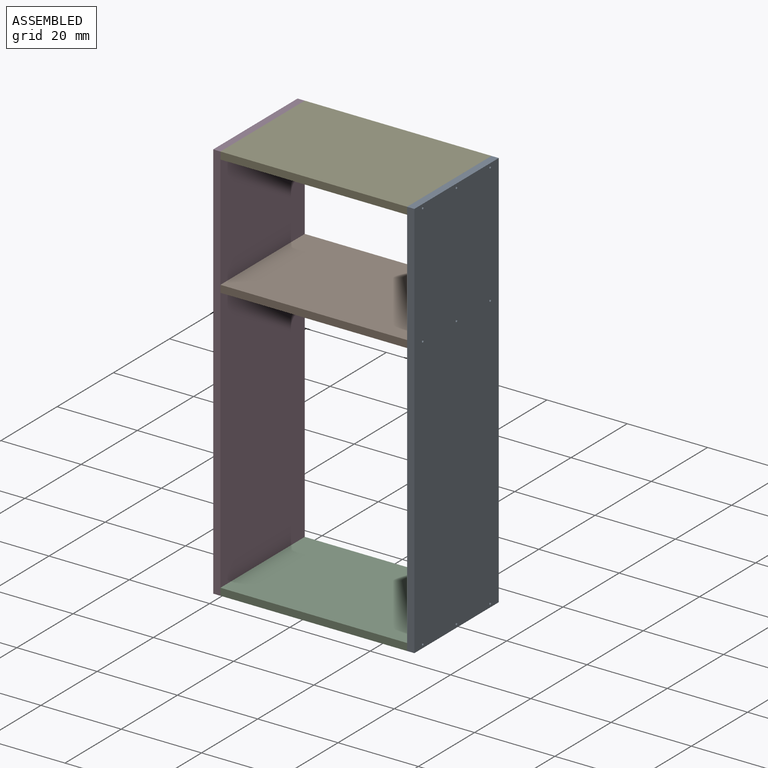
[diagram: assembled view]
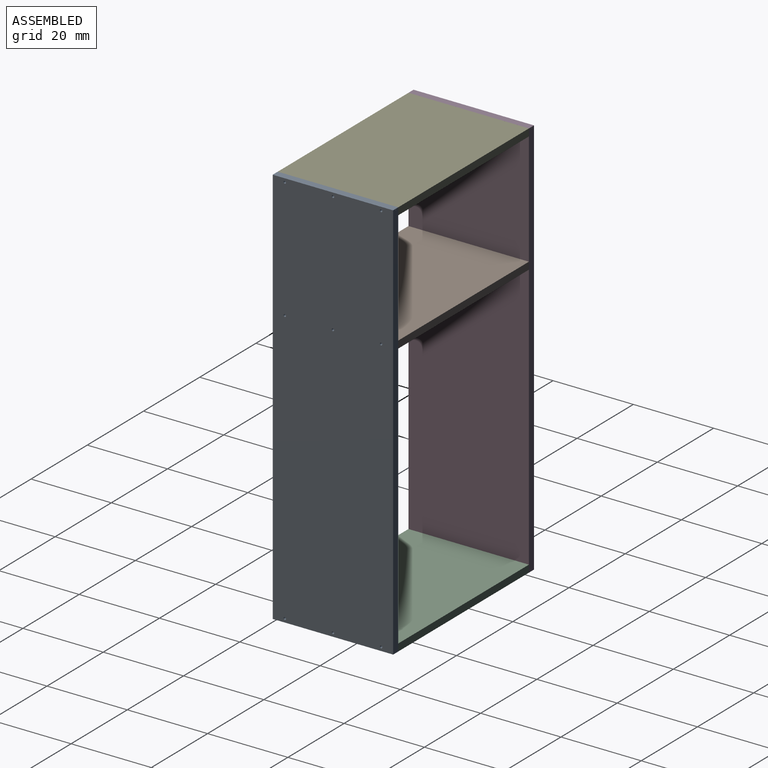
[diagram: assembled view, second angle]
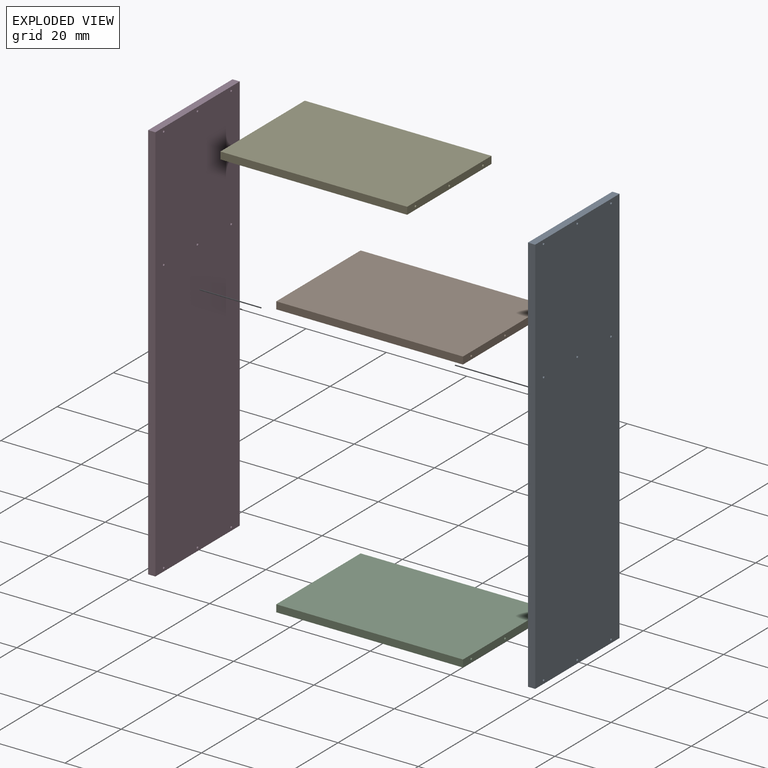
[diagram: exploded view]
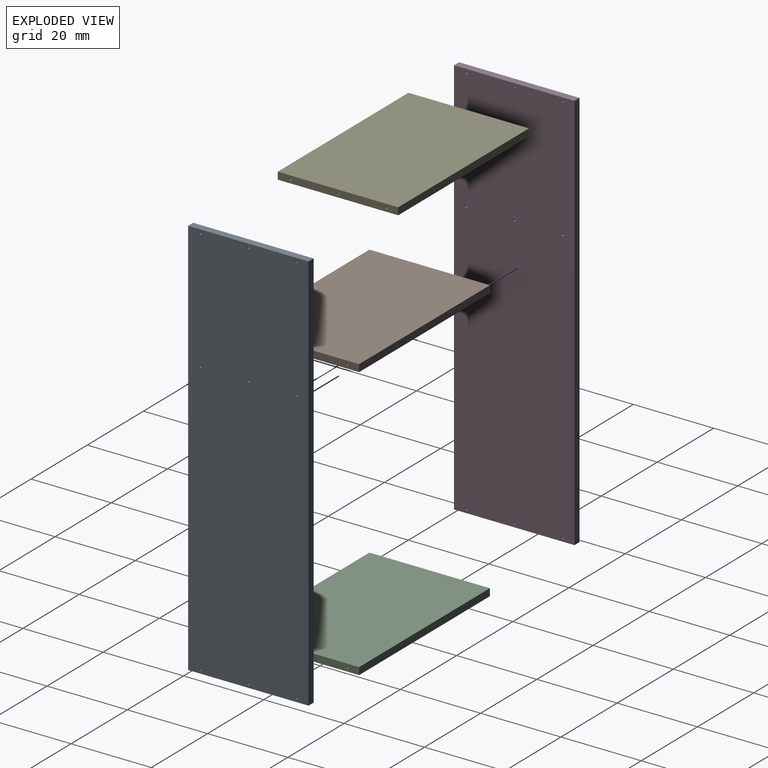
[diagram: exploded view, second angle]
ASSEMBLY  parts=5 mates=4
PART A: 17 faces, bbox 1.8x30.1x100 mm
  f0: plane 30x1.8mm, normal (0,0,1), area 54mm2, adj f1,f3,f4,f5
  f1: plane 100x30mm, normal (-1,0,0), area 2997.5mm2, adj f0,f2,f4,f5,f6,f7,f8,f9
  f2: plane 30x1.8mm, normal (0,0,-1), area 54mm2, adj f1,f3,f4,f5
  f3: plane 100x30mm, normal (1,0,0), area 2997.5mm2, adj f0,f2,f4,f5,f6,f7,f8,f9
  f4: plane 100x1.8mm, normal (0,-1,0), area 180mm2, adj f0,f1,f2,f3
  f5: plane 100x1.8mm, normal (0,1,0), area 180mm2, adj f0,f1,f2,f3,f15
  f6: cylinder r=0.3mm len=1.8mm, axis (1,0,0), area 3.4mm2, adj f1,f3
  f7: cylinder r=0.3mm len=1.8mm, axis (1,0,0), area 3.4mm2, adj f1,f3
  f8: cylinder r=0.3mm len=1.8mm, axis (1,0,0), area 3.4mm2, adj f1,f3
  f9: cylinder r=0.3mm len=1.8mm, axis (1,0,0), area 3.4mm2, adj f1,f3
  f10: cylinder r=0.3mm len=1.8mm, axis (1,0,0), area 3.4mm2, adj f1,f3
  f11: cylinder r=0.3mm len=1.8mm, axis (1,0,0), area 3.4mm2, adj f1,f3
  f12: cylinder r=0.3mm len=1.8mm, axis (1,0,0), area 3.4mm2, adj f1,f3
  f13: cylinder r=0.3mm len=1.8mm, axis (1,0,0), area 3.4mm2, adj f1,f3
  f14: cylinder r=0.3mm len=1.8mm, axis (1,0,0), area 3.4mm2, adj f1,f3
  f15: cylinder r=0.05mm len=0.1mm, axis (0,-1,0), area 0mm2, adj f5,f16
  f16: plane 0.1x0.1mm, normal (0,1,0), area 0mm2, adj f15
PART B: 18 faces, bbox 46.5x30x1.8 mm
  f0: plane 46.5x1.8mm, normal (0,1,0), area 83.7mm2, adj f1,f3,f4,f5
  f1: plane 30x1.8mm, normal (-1,0,0), area 53.2mm2, adj f0,f2,f4,f5,f12,f14,f16
  f2: plane 46.5x1.8mm, normal (0,-1,0), area 83.7mm2, adj f1,f3,f4,f5
  f3: plane 30x1.8mm, normal (1,0,0), area 53.2mm2, adj f0,f2,f4,f5,f6,f8,f10
  f4: plane 46.5x30mm, normal (0,0,1), area 1395mm2, adj f0,f1,f2,f3
  f5: plane 46.5x30mm, normal (0,0,-1), area 1395mm2, adj f0,f1,f2,f3
  f6: cylinder r=0.3mm len=4.5mm, axis (1,0,0), area 8.5mm2, adj f3,f7
  f7: plane 0.6x0.6mm, normal (1,0,0), area 0.3mm2, adj f6
  f8: cylinder r=0.3mm len=4.5mm, axis (1,0,0), area 8.5mm2, adj f3,f9
  f9: plane 0.6x0.6mm, normal (1,0,0), area 0.3mm2, adj f8
  f10: cylinder r=0.3mm len=4.5mm, axis (1,0,0), area 8.5mm2, adj f3,f11
  f11: plane 0.6x0.6mm, normal (1,0,0), area 0.3mm2, adj f10
  f12: cylinder r=0.3mm len=4.5mm, axis (-1,0,0), area 8.5mm2, adj f1,f13
  f13: plane 0.6x0.6mm, normal (-1,0,0), area 0.3mm2, adj f12
  f14: cylinder r=0.3mm len=4.5mm, axis (-1,0,0), area 8.5mm2, adj f1,f15
  f15: plane 0.6x0.6mm, normal (-1,0,0), area 0.3mm2, adj f14
  f16: cylinder r=0.3mm len=4.5mm, axis (-1,0,0), area 8.5mm2, adj f1,f17
  f17: plane 0.6x0.6mm, normal (-1,0,0), area 0.3mm2, adj f16
PART C: same geometry as B
PART D: same geometry as A
PART E: same geometry as B
PLACE A t=(9.21,11.29,-0.33)mm
PLACE B t=(-14.94,-3.71,18.77)mm
PLACE C t=(-14.94,-3.71,-49.43)mm
PLACE D t=(-39.09,11.29,-0.33)mm
PLACE E t=(-14.94,-3.71,48.77)mm
MATE fastened B.f12 <-> D.f11  axis (-1,0,0) through (-38.19,-3.71,18.77)mm
MATE fastened C.f12 <-> D.f14  axis (-1,0,0) through (-38.19,-3.71,-49.43)mm
MATE fastened E.f12 <-> D.f8  axis (-1,0,0) through (-38.19,-3.71,48.77)mm
MATE fastened A.f11 <-> B.f6  axis (-1,0,0) through (8.31,-3.71,18.77)mm
